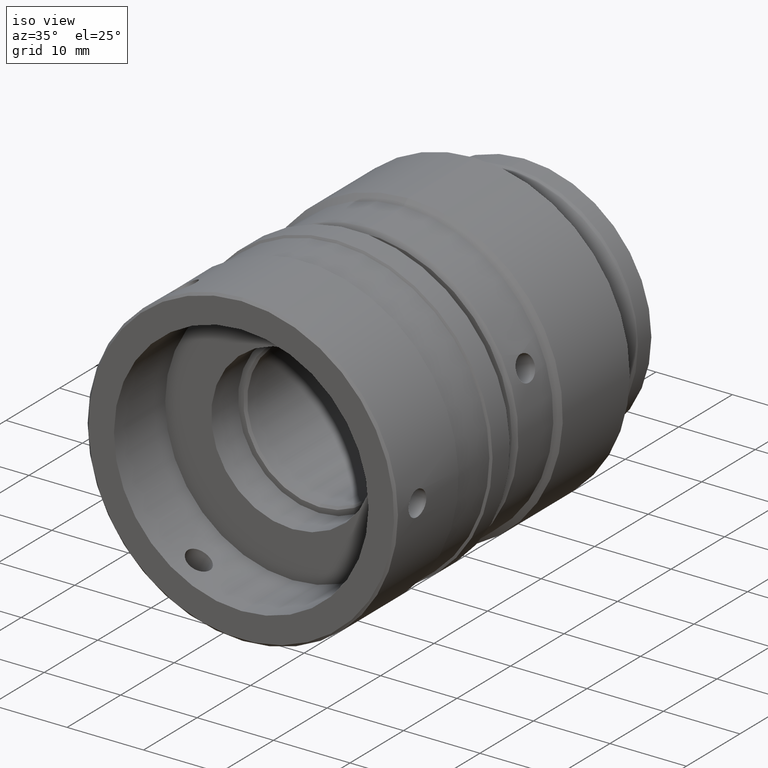
[diagram: clean part render]
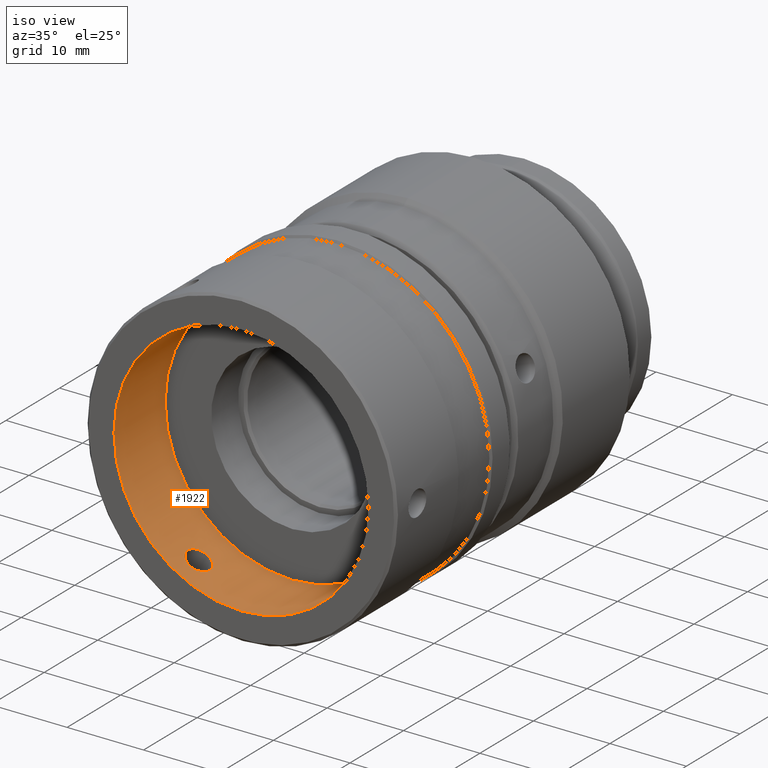
[diagram: same view with one face highlighted and labeled with its STEP entity id]
A machine part, iso view. The second image highlights one B-rep face of the part: STEP entity #1922.
In plain terms, the highlighted cylindrical surface (bore or boss wall) has radius 16.65 mm, axis along (-0, -1, -0).
Its self-contained STEP definition (entity closure, byte-faithful):
#16 = CARTESIAN_POINT ( 'NONE',  ( 30.87056518508689962, -19.67017350157757605, -1.649999999999998579 ) ) ;
#35 = CARTESIAN_POINT ( 'NONE',  ( 7.407886653975933378, -20.10282941738078577, 15.15563960079791883 ) ) ;
#44 = CARTESIAN_POINT ( 'NONE',  ( 7.399261285211218286, -20.09742192102253000, -15.15149869125153970 ) ) ;
#56 = CARTESIAN_POINT ( 'NONE',  ( 6.165025702879183278, -21.32002080350313733, -14.52755985513826786 ) ) ;
#107 = CARTESIAN_POINT ( 'NONE',  ( 4.589560980171367710, -19.67017350157757605, -13.52334485228183425 ) ) ;
#109 = CARTESIAN_POINT ( 'NONE',  ( 30.95146064570561606, -18.03080132146151726, 0.2158723718159236693 ) ) ;
#111 = CARTESIAN_POINT ( 'NONE',  ( 7.370233246583027586, -19.13811687412143669, 15.13828190850778732 ) ) ;
#116 = CARTESIAN_POINT ( 'NONE',  ( 30.90091788864421574, -20.67746507120950383, -1.311261420921022047 ) ) ;
#119 = B_SPLINE_CURVE_WITH_KNOTS ( 'NONE', 3,
 ( #1971, #387, #1084, #1821, #1798, #1307, #209, #1982, #243, #2178, #1763, #419, #220, #737, #1446, #1046, #2155, #918, #1107, #231, #567, #1120, #1274, #1633, #592, #1810, #1285, #173, #873, #44, #749, #1457, #1470, #2166, #580, #1994, #929, #1645, #56, #760, #1296, #2005, #2042, #1319, #1186, #979, #1696, #965, #1505, #296, #953, #1894, #1671, #107 ),
 .UNSPECIFIED., .T., .F.,
 ( 4, 2, 2, 2, 2, 2, 2, 2, 2, 2, 2, 2, 2, 2, 2, 2, 2, 2, 2, 2, 2, 2, 2, 2, 2, 2, 4 ),
 ( 0.000000000000000000, 0.0003225425957372763937, 0.0006450851914745527873, 0.0009676277872118291268, 0.001290170382949105575, 0.001935255574423647412, 0.002580340765898189465, 0.002902883361635461793, 0.003225425957372734121, 0.003547968553110006883, 0.003870511148847278777, 0.004193053744584551538, 0.004515596340321823866, 0.005160681531796367655, 0.005483224127533633911, 0.005805766723270901902, 0.006128309319008169026, 0.006450851914745436150, 0.007095937106219963458, 0.007741022297694488165, 0.008063564893431752686, 0.008386107489169016341, 0.008708650084906279995, 0.009031192680643543649, 0.009353735276380809038, 0.009676277872118070958, 0.01032136306359260867 ),
 .UNSPECIFIED. ) ;
#121 = CARTESIAN_POINT ( 'NONE',  ( 30.88644130139157440, -18.93785698877006496, 1.482534456406314760 ) ) ;
#123 = CARTESIAN_POINT ( 'NONE',  ( 4.598296489456230596, -19.88647668602636998, 13.52963114916807186 ) ) ;
#133 = CARTESIAN_POINT ( 'NONE',  ( 30.92228117155350731, -18.35132570104167371, -1.014598517724230042 ) ) ;
#146 = CARTESIAN_POINT ( 'NONE',  ( 30.95146064961669907, -21.30954572047093265, -0.2158719825168255446 ) ) ;
#148 = CARTESIAN_POINT ( 'NONE',  ( 4.589561232836488536, -19.77924536381511444, 13.52334503375521635 ) ) ;
#157 = CARTESIAN_POINT ( 'NONE',  ( 30.88641961823405779, -18.93834871924507368, -1.482775887056170694 ) ) ;
#159 = CARTESIAN_POINT ( 'NONE',  ( 5.609850582111199913, -18.07287508091668116, 14.20109638130206520 ) ) ;
#173 = CARTESIAN_POINT ( 'NONE',  ( 7.447444529166681093, -19.77924536381510023, -15.17334472420398939 ) ) ;
#198 = CARTESIAN_POINT ( 'NONE',  ( 14.30252365930601144, -23.61017350157762351, -6.938893903907228378E-15 ) ) ;
#209 = CARTESIAN_POINT ( 'NONE',  ( 4.768084820516240718, -18.84361125863317099, -13.64992978743777208 ) ) ;
#220 = CARTESIAN_POINT ( 'NONE',  ( 5.790036414369917672, -18.02032619992391815, -14.31105968844311072 ) ) ;
#231 = CARTESIAN_POINT ( 'NONE',  ( 6.863416483750295782, -18.35756198235752734, -14.89597918450131075 ) ) ;
#243 = CARTESIAN_POINT ( 'NONE',  ( 4.924400781574530761, -18.57947326001093202, -13.75787497289056027 ) ) ;
#270 = ORIENTED_EDGE ( 'NONE', *, *, #1816, .F. ) ;
#296 = CARTESIAN_POINT ( 'NONE',  ( 4.769145562213570777, -20.49891863945954640, -13.65067029725654280 ) ) ;
#298 = CARTESIAN_POINT ( 'NONE',  ( 30.94437348724385473, -18.10401344155607717, 0.5304078244207934834 ) ) ;
#300 = CARTESIAN_POINT ( 'NONE',  ( 5.604166959140171045, -21.27659272925781053, 14.19861056205348504 ) ) ;
#310 = CARTESIAN_POINT ( 'NONE',  ( 30.94437351546437043, -21.23633385761170445, -0.5304069092526541018 ) ) ;
#312 = CARTESIAN_POINT ( 'NONE',  ( 6.350349314462011563, -21.26747210927094400, 14.62862354459146985 ) ) ;
#323 = CARTESIAN_POINT ( 'NONE',  ( 30.87164146698486888, -19.45387451277937529, -1.639292244369253693 ) ) ;
#326 = CARTESIAN_POINT ( 'NONE',  ( 7.399262208679997066, -19.24292881143790268, 15.15149911168826158 ) ) ;
#337 = EDGE_LOOP ( 'NONE', ( #1924 ) ) ;
#338 = CARTESIAN_POINT ( 'NONE',  ( 4.726652337029537243, -18.93785698877006141, 13.62082674411179894 ) ) ;
#370 = VERTEX_POINT ( 'NONE', #16 ) ;
#387 = CARTESIAN_POINT ( 'NONE',  ( 4.589560980171366822, -19.56110607403454793, -13.52334485228183425 ) ) ;
#407 = CARTESIAN_POINT ( 'NONE',  ( 7.294475990182783143, -20.40249298859101756, 15.10336057483338479 ) ) ;
#417 = FACE_BOUND ( 'NONE', #337, .T. ) ;
#419 = CARTESIAN_POINT ( 'NONE',  ( 5.604166302340058969, -18.06375442982372093, -14.19861016385346453 ) ) ;
#441 = DIRECTION ( 'NONE',  ( -0.000000000000000000, -1.000000000000000000, -0.000000000000000000 ) ) ;
#465 = CARTESIAN_POINT ( 'NONE',  ( 30.92237372736938283, -20.98278618002589724, -1.005532263322487463 ) ) ;
#471 = CARTESIAN_POINT ( 'NONE',  ( 30.87880568239256718, -20.20223363571934527, 1.565600143535539779 ) ) ;
#483 = CARTESIAN_POINT ( 'NONE',  ( 30.94805945456930729, -21.27659272925780698, 0.4336925924953600187 ) ) ;
#485 = CARTESIAN_POINT ( 'NONE',  ( 5.052265960909738673, -18.42569638286175859, 13.84417569758520372 ) ) ;
#494 = CARTESIAN_POINT ( 'NONE',  ( 30.95253116408970939, -21.32024923168640740, -0.1064996456120240881 ) ) ;
#496 = CARTESIAN_POINT ( 'NONE',  ( 4.658533151292323815, -20.20223363571933461, 13.57268126052042767 ) ) ;
#506 = CARTESIAN_POINT ( 'NONE',  ( 30.87056518508690672, -19.56110607403454438, -1.649999999999999023 ) ) ;
#529 = VERTEX_POINT ( 'NONE', #845 ) ;
#536 = AXIS2_PLACEMENT_3D ( 'NONE', #802, #441, #1657 ) ;
#557 = CARTESIAN_POINT ( 'NONE',  ( 7.138912246156918329, -20.67746507120950383, 15.03026177509638295 ) ) ;
#567 = CARTESIAN_POINT ( 'NONE',  ( 6.938244659940262515, -18.42569638286175149, -14.93304600715638841 ) ) ;
#580 = CARTESIAN_POINT ( 'NONE',  ( 7.076914362487521259, -20.76087562413395204, -15.00062941225252011 ) ) ;
#592 = CARTESIAN_POINT ( 'NONE',  ( 7.294477339496997281, -18.93785698877006141, -15.10336120051824516 ) ) ;
#616 = CARTESIAN_POINT ( 'NONE',  ( 7.447444812659815838, -19.67017350157757605, 15.17334485228169427 ) ) ;
#621 = CARTESIAN_POINT ( 'NONE',  ( 30.87501106686349672, -20.10282941738079288, -1.606889003910932479 ) ) ;
#636 = CARTESIAN_POINT ( 'NONE',  ( 30.90624071340990042, -18.57961693245117374, 1.242999686085178856 ) ) ;
#640 = CARTESIAN_POINT ( 'NONE',  ( 4.866808860079305354, -20.67603376374906077, 13.71835971999867709 ) ) ;
#650 = CARTESIAN_POINT ( 'NONE',  ( 30.87573761838393338, -20.09742192102253355, 1.597348760670246337 ) ) ;
#653 = CARTESIAN_POINT ( 'NONE',  ( 6.706664580995882474, -18.22840853159068431, 14.81772169252141502 ) ) ;
#662 = CARTESIAN_POINT ( 'NONE',  ( 30.87164152324371358, -19.88647668602635576, 1.639291678600941937 ) ) ;
#673 = CARTESIAN_POINT ( 'NONE',  ( 30.88641974911332611, -20.40200121010397893, 1.482774426814292390 ) ) ;
#675 = CARTESIAN_POINT ( 'NONE',  ( 7.447444812659813174, -19.56110607403454082, 15.17334485228169250 ) ) ;
#698 = EDGE_LOOP ( 'NONE', ( #270 ) ) ;
#699 = CARTESIAN_POINT ( 'NONE',  ( 7.447444812659815838, -19.67017350157757249, 15.17334485228169960 ) ) ;
#714 = CIRCLE ( 'NONE', #1160, 16.64999999999999858 ) ;
#737 = CARTESIAN_POINT ( 'NONE',  ( 6.069751472314235841, -18.02009777133278590, -14.47257939147130479 ) ) ;
#749 = CARTESIAN_POINT ( 'NONE',  ( 7.370232144233224147, -20.20223363571933461, -15.13828140405609624 ) ) ;
#760 = CARTESIAN_POINT ( 'NONE',  ( 5.885288508320247303, -21.32024923168641095, -14.36607964953831207 ) ) ;
#770 = CARTESIAN_POINT ( 'NONE',  ( 6.703695067100464478, -21.10211790308281010, 14.81513805010832385 ) ) ;
#773 = EDGE_CURVE ( 'NONE', #1007, #1007, #1697, .T. ) ;
#779 = FACE_BOUND ( 'NONE', #909, .T. ) ;
#791 = CARTESIAN_POINT ( 'NONE',  ( 30.90624084057570542, -20.76073198813619669, -1.242997984456236660 ) ) ;
#802 = CARTESIAN_POINT ( 'NONE',  ( 14.30252365930601144, -23.31017350157762991, -6.938893903907228378E-15 ) ) ;
#807 = CARTESIAN_POINT ( 'NONE',  ( 30.87880556808561749, -19.13811687412142604, -1.565601350424563387 ) ) ;
#809 = CARTESIAN_POINT ( 'NONE',  ( 5.271650912243766918, -18.23822986220069353, 13.98834689521491903 ) ) ;
#820 = CARTESIAN_POINT ( 'NONE',  ( 30.90625432678511686, -18.57947326001093558, -1.242755165482364310 ) ) ;
#822 = CARTESIAN_POINT ( 'NONE',  ( 5.885288341500677589, -18.02009777133278945, 14.36607955324051922 ) ) ;
#832 = CARTESIAN_POINT ( 'NONE',  ( 30.95250852706814371, -21.32002080350313733, 0.2164999740593901989 ) ) ;
#834 = CARTESIAN_POINT ( 'NONE',  ( 4.769144280243407863, -18.84143102790322288, 13.65066940175083054 ) ) ;
#844 = CARTESIAN_POINT ( 'NONE',  ( 30.93297661039238022, -18.22840853159068786, -0.8306539208775702843 ) ) ;
#845 = CARTESIAN_POINT ( 'NONE',  ( 14.30252365930601144, -14.05017350157723044, -16.65000000000000568 ) ) ;
#847 = CARTESIAN_POINT ( 'NONE',  ( 4.768086093743278298, -20.49673840251479007, 13.64993067704060969 ) ) ;
#849 = EDGE_CURVE ( 'NONE', #1712, #1712, #119, .T. ) ;
#857 = CARTESIAN_POINT ( 'NONE',  ( 30.94737042570227459, -18.07287508091668116, 0.4275275209926364117 ) ) ;
#873 = CARTESIAN_POINT ( 'NONE',  ( 7.437632965218154979, -19.88647668602636642, -15.16892282776915124 ) ) ;
#895 = DIRECTION ( 'NONE',  ( 0.000000000000000000, 0.000000000000000000, -1.000000000000000000 ) ) ;
#908 = CARTESIAN_POINT ( 'NONE',  ( 6.938243215504215300, -20.91465200720845985, 14.93304529458042751 ) ) ;
#909 = EDGE_LOOP ( 'NONE', ( #2203 ) ) ;
#918 = CARTESIAN_POINT ( 'NONE',  ( 6.617795752194862047, -18.18662015343019434, -14.77083122743972332 ) ) ;
#929 = CARTESIAN_POINT ( 'NONE',  ( 6.706663368735995334, -21.11193919932679819, -14.81772106709796688 ) ) ;
#953 = CARTESIAN_POINT ( 'NONE',  ( 4.726653553545616226, -20.40249298859101401, -13.62082759980978075 ) ) ;
#963 = CARTESIAN_POINT ( 'NONE',  ( 30.87056518508690672, -19.88830835666364294, -1.649999999999998579 ) ) ;
#965 = CARTESIAN_POINT ( 'NONE',  ( 4.924197237279340555, -20.76073198813619314, -13.75774188400367670 ) ) ;
#979 = CARTESIAN_POINT ( 'NONE',  ( 5.121782140912319647, -20.98278618002590079, -13.89044623437025194 ) ) ;
#993 = CARTESIAN_POINT ( 'NONE',  ( 30.92237363510622572, -18.35756198235754866, 1.005533796744149555 ) ) ;
#1006 = CARTESIAN_POINT ( 'NONE',  ( 30.93680274388096052, -21.15372744040918462, -0.7302447951016992622 ) ) ;
#1007 = VERTEX_POINT ( 'NONE', #616 ) ;
#1022 = CARTESIAN_POINT ( 'NONE',  ( 5.121780859061584756, -18.35756198235754511, 13.89044538775703863 ) ) ;
#1034 = CARTESIAN_POINT ( 'NONE',  ( 5.352972534886359490, -18.18662015343018723, 14.04058520244936226 ) ) ;
#1046 = CARTESIAN_POINT ( 'NONE',  ( 6.350349970104626429, -18.07287508091667760, -14.62862390229483367 ) ) ;
#1058 = ORIENTED_EDGE ( 'NONE', *, *, #773, .T. ) ;
#1084 = CARTESIAN_POINT ( 'NONE',  ( 4.598296027616123105, -19.45387451277936819, -13.52963081756247909 ) ) ;
#1097 = CARTESIAN_POINT ( 'NONE',  ( 7.077132900063048737, -20.76073198813619314, 15.00073986845977103 ) ) ;
#1107 = CARTESIAN_POINT ( 'NONE',  ( 6.703696264631886947, -18.23822986220069353, -14.81513866490796794 ) ) ;
#1115 = EDGE_CURVE ( 'NONE', #1848, #1848, #1278, .T. ) ;
#1120 = CARTESIAN_POINT ( 'NONE',  ( 7.077134437300052205, -18.57961693245117374, -15.00074060914556284 ) ) ;
#1160 = AXIS2_PLACEMENT_3D ( 'NONE', #1201, #2253, #1921 ) ;
#1173 = FACE_OUTER_BOUND ( 'NONE', #698, .T. ) ;
#1179 = CARTESIAN_POINT ( 'NONE',  ( 5.113978117228787035, -20.98902243796041844, 13.88583381425808660 ) ) ;
#1186 = CARTESIAN_POINT ( 'NONE',  ( 5.271652043441578783, -21.10211790308282076, -13.98834762490776740 ) ) ;
#1188 = CARTESIAN_POINT ( 'NONE',  ( 30.94805943811801541, -18.06375442982372803, -0.4336933604012082610 ) ) ;
#1190 = CARTESIAN_POINT ( 'NONE',  ( 5.790036747970768616, -21.32002080350314799, 14.31105988107875149 ) ) ;
#1201 = CARTESIAN_POINT ( 'NONE',  ( 14.30252365930601144, -14.05017350157723044, -6.938893903907228378E-15 ) ) ;
#1203 = CARTESIAN_POINT ( 'NONE',  ( 4.924402163948594868, -20.76087562413395915, 13.75787591499211082 ) ) ;
#1213 = CARTESIAN_POINT ( 'NONE',  ( 30.95253116410318839, -18.02009777133279655, 0.1064998382306478614 ) ) ;
#1216 = CARTESIAN_POINT ( 'NONE',  ( 7.447444812659815838, -19.67017350157757249, 15.17334485228169960 ) ) ;
#1226 = CARTESIAN_POINT ( 'NONE',  ( 6.871312994173408129, -18.35132570104167016, 14.90043146920566741 ) ) ;
#1272 = DIRECTION ( 'NONE',  ( 0.000000000000000000, 1.000000000000000000, 0.000000000000000000 ) ) ;
#1274 = CARTESIAN_POINT ( 'NONE',  ( 7.138913740506144023, -18.66288405901757486, -15.03026248713923607 ) ) ;
#1278 = CIRCLE ( 'NONE', #1352, 16.64999999999999858 ) ;
#1285 = CARTESIAN_POINT ( 'NONE',  ( 7.447445379628416795, -19.45204382574903335, -15.17334510842925255 ) ) ;
#1296 = CARTESIAN_POINT ( 'NONE',  ( 5.791104543325918286, -21.30954572047092910, -14.31046638835716145 ) ) ;
#1305 = FACE_BOUND ( 'NONE', #1482, .T. ) ;
#1307 = CARTESIAN_POINT ( 'NONE',  ( 4.726454093532460377, -18.93834871924507368, -13.62068725062179020 ) ) ;
#1316 = CARTESIAN_POINT ( 'NONE',  ( 30.89103996396205432, -20.49891863945954640, -1.430812467336088467 ) ) ;
#1319 = CARTESIAN_POINT ( 'NONE',  ( 5.352973573479233416, -21.15372744040919173, -14.04058586333130698 ) ) ;
#1345 = CARTESIAN_POINT ( 'NONE',  ( 30.89103982941647430, -18.84143102790323709, 1.430814025307418635 ) ) ;
#1346 = CARTESIAN_POINT ( 'NONE',  ( 14.30252365930601144, -23.61017350157762351, -16.65000000000000568 ) ) ;
#1347 = CARTESIAN_POINT ( 'NONE',  ( 7.294697266151556114, -18.93834871924507368, 15.10346313767782789 ) ) ;
#1352 = AXIS2_PLACEMENT_3D ( 'NONE', #198, #1272, #895 ) ;
#1357 = CARTESIAN_POINT ( 'NONE',  ( 30.92228126622110906, -20.98902243796041844, 1.014596956139992567 ) ) ;
#1359 = CARTESIAN_POINT ( 'NONE',  ( 4.924195827208137644, -18.57961693245117019, 13.75774092306024343 ) ) ;
#1372 = CARTESIAN_POINT ( 'NONE',  ( 4.589560474856791750, -19.45204382574901913, 13.52334448934637479 ) ) ;
#1383 = CARTESIAN_POINT ( 'NONE',  ( 30.90082894283450443, -18.66431539277606078, -1.312390523965326405 ) ) ;
#1386 = CARTESIAN_POINT ( 'NONE',  ( 7.437633483317089400, -19.45387451277936464, 15.16892306193159712 ) ) ;
#1399 = CARTESIAN_POINT ( 'NONE',  ( 7.248557122905934236, -18.84361125863317099, 15.08203113893985403 ) ) ;
#1446 = CARTESIAN_POINT ( 'NONE',  ( 6.165006124074135840, -18.03080132146151726, -14.52633856213643604 ) ) ;
#1457 = CARTESIAN_POINT ( 'NONE',  ( 7.294695936105583201, -20.40200121010396117, -15.10346252090176833 ) ) ;
#1470 = CARTESIAN_POINT ( 'NONE',  ( 7.248555715873743033, -20.49673840251477586, -15.08203048109432665 ) ) ;
#1479 = CARTESIAN_POINT ( 'NONE',  ( 30.91706046217723625, -20.91465200720845274, -1.088868702365001884 ) ) ;
#1481 = CARTESIAN_POINT ( 'NONE',  ( 7.247385451742459850, -20.49891863945954640, 15.08148276459248471 ) ) ;
#1482 = EDGE_LOOP ( 'NONE', ( #1058 ) ) ;
#1505 = CARTESIAN_POINT ( 'NONE',  ( 4.867740843116948213, -20.67746507120951449, -13.71900035417549901 ) ) ;
#1519 = CARTESIAN_POINT ( 'NONE',  ( 30.93680269083687762, -18.18662015343019789, 0.7302460249902265055 ) ) ;
#1520 = CARTESIAN_POINT ( 'NONE',  ( 4.589560980171366822, -19.67017350157757605, -13.52334485228183425 ) ) ;
#1521 = CARTESIAN_POINT ( 'NONE',  ( 5.522252095022576412, -18.10401344155607717, 14.14706080474940286 ) ) ;
#1531 = CARTESIAN_POINT ( 'NONE',  ( 30.89092916830108493, -20.49673840251478651, 1.432099804053588610 ) ) ;
#1545 = CARTESIAN_POINT ( 'NONE',  ( 30.87056518508690672, -19.67017350157757605, -1.649999999999999023 ) ) ;
#1548 = CARTESIAN_POINT ( 'NONE',  ( 6.440944588982350005, -21.23633385761171510, 14.67746819602582065 ) ) ;
#1557 = CARTESIAN_POINT ( 'NONE',  ( 30.87056512343286485, -19.45204382574902979, 1.650000619082738096 ) ) ;
#1560 = CARTESIAN_POINT ( 'NONE',  ( 6.165005784975474690, -21.30954572047093620, 14.52633837087385693 ) ) ;
#1633 = CARTESIAN_POINT ( 'NONE',  ( 7.247386868258222314, -18.84143102790323709, -15.08148342705839262 ) ) ;
#1645 = CARTESIAN_POINT ( 'NONE',  ( 6.355344564208615488, -21.27659272925780698, -14.63230315454898722 ) ) ;
#1657 = DIRECTION ( 'NONE',  ( 0.000000000000000000, 0.000000000000000000, -1.000000000000000000 ) ) ;
#1671 = CARTESIAN_POINT ( 'NONE',  ( 4.589560980171369486, -19.88830835666362873, -13.52334485228183603 ) ) ;
#1672 = EDGE_LOOP ( 'NONE', ( #1869 ) ) ;
#1696 = CARTESIAN_POINT ( 'NONE',  ( 5.052267300236636949, -20.91465200720844564, -13.84417659221555930 ) ) ;
#1697 = B_SPLINE_CURVE_WITH_KNOTS ( 'NONE', 3,
 ( #1216, #675, #1386, #326, #111, #1347, #1399, #1739, #2244, #1226, #653, #1713, #1935, #822, #1925, #159, #1521, #1034, #809, #1022, #485, #1359, #2230, #834, #338, #2085, #1372, #148, #123, #2073, #496, #1726, #847, #640, #1203, #1179, #1886, #300, #1190, #1897, #1560, #312, #1548, #2268, #770, #1832, #908, #1097, #557, #1481, #407, #35, #2292, #699 ),
 .UNSPECIFIED., .T., .F.,
 ( 4, 2, 2, 2, 2, 2, 2, 2, 2, 2, 2, 2, 2, 2, 2, 2, 2, 2, 2, 2, 2, 2, 2, 2, 2, 2, 4 ),
 ( 0.000000000000000000, 0.0003225425957372717858, 0.0006450851914745435716, 0.0009676277872118153574, 0.001290170382949087143, 0.001935255574423638087, 0.002580340765898189032, 0.002902883361635463528, 0.003225425957372737157, 0.003547968553110011653, 0.003870511148847285282, 0.004193053744584560212, 0.004515596340321833407, 0.005160681531796383267, 0.005483224127533652993, 0.005805766723270922719, 0.006128309319008190710, 0.006450851914745461303, 0.007095937106219992081, 0.007741022297694522859, 0.008063564893431787381, 0.008386107489169052770, 0.008708650084906318159, 0.009031192680643581813, 0.009353735276380847202, 0.009676277872118112591, 0.01032136306359263296 ),
 .UNSPECIFIED. ) ;
#1711 = CARTESIAN_POINT ( 'NONE',  ( 30.90091775811681885, -18.66288405901756420, 1.311263071086592902 ) ) ;
#1712 = VERTEX_POINT ( 'NONE', #1520 ) ;
#1713 = CARTESIAN_POINT ( 'NONE',  ( 6.355345237460026553, -18.06375442982372803, 14.63230352425453873 ) ) ;
#1726 = CARTESIAN_POINT ( 'NONE',  ( 4.726455292699195176, -20.40200121010397183, 13.62068809408733649 ) ) ;
#1737 = CARTESIAN_POINT ( 'NONE',  ( 30.87573752075840616, -19.24292881143790979, -1.597349770636277588 ) ) ;
#1739 = CARTESIAN_POINT ( 'NONE',  ( 7.139934550981637429, -18.66431539277605722, 15.03074929728775899 ) ) ;
#1763 = CARTESIAN_POINT ( 'NONE',  ( 5.267929786529832015, -18.22840853159068075, -13.98706777164397863 ) ) ;
#1798 = CARTESIAN_POINT ( 'NONE',  ( 4.658532163249436309, -19.13811687412143669, -13.57268055808336804 ) ) ;
#1810 = CARTESIAN_POINT ( 'NONE',  ( 7.407887607374943784, -19.23752128709564957, -15.15564003290677064 ) ) ;
#1816 = EDGE_CURVE ( 'NONE', #529, #529, #714, .T. ) ;
#1821 = CARTESIAN_POINT ( 'NONE',  ( 4.632571248479670167, -19.24292881143789913, -13.55414934105212410 ) ) ;
#1832 = CARTESIAN_POINT ( 'NONE',  ( 6.863415109636392231, -20.98278618002590079, 14.89597849769260129 ) ) ;
#1848 = VERTEX_POINT ( 'NONE', #1346 ) ;
#1854 = FACE_OUTER_BOUND ( 'NONE', #1672, .T. ) ;
#1869 = ORIENTED_EDGE ( 'NONE', *, *, #1115, .F. ) ;
#1880 = CYLINDRICAL_SURFACE ( 'NONE', #536, 16.64999999999999858 ) ;
#1884 = CARTESIAN_POINT ( 'NONE',  ( 30.89092903449591532, -18.84361125863318875, -1.432101351502216957 ) ) ;
#1886 = CARTESIAN_POINT ( 'NONE',  ( 5.267930934292381018, -21.11193919932679108, 13.98706850878008545 ) ) ;
#1890 = EDGE_CURVE ( 'NONE', #370, #370, #2243, .T. ) ;
#1894 = CARTESIAN_POINT ( 'NONE',  ( 4.624673257078653066, -20.10282941738079643, -13.54875059688712291 ) ) ;
#1896 = CARTESIAN_POINT ( 'NONE',  ( 30.94737044374338808, -21.26747210927094045, -0.4275267743380467000 ) ) ;
#1897 = CARTESIAN_POINT ( 'NONE',  ( 6.069751305508140682, -21.32024923168641095, 14.47257929515019903 ) ) ;
#1908 = CARTESIAN_POINT ( 'NONE',  ( 30.90082907469141915, -20.67603376374905366, 1.312388858995678254 ) ) ;
#1921 = DIRECTION ( 'NONE',  ( 0.000000000000000000, 0.000000000000000000, -1.000000000000000000 ) ) ;
#1922 = ADVANCED_FACE ( 'NONE', ( #1173, #417, #1854, #1305, #779 ), #1880, .F. ) ;
#1924 = ORIENTED_EDGE ( 'NONE', *, *, #1890, .T. ) ;
#1925 = CARTESIAN_POINT ( 'NONE',  ( 5.791104208138344589, -18.03080132146151726, 14.31046619032037803 ) ) ;
#1935 = CARTESIAN_POINT ( 'NONE',  ( 6.165026036506977114, -18.02032619992391460, 14.52756004772724374 ) ) ;
#1971 = CARTESIAN_POINT ( 'NONE',  ( 4.589560980171367710, -19.67017350157757605, -13.52334485228183425 ) ) ;
#1982 = CARTESIAN_POINT ( 'NONE',  ( 4.866807484101949299, -18.66431539277606788, -13.71835877332256715 ) ) ;
#1994 = CARTESIAN_POINT ( 'NONE',  ( 6.871311594468200390, -20.98902243796041844, -14.90043077039820929 ) ) ;
#2005 = CARTESIAN_POINT ( 'NONE',  ( 5.609851219712687964, -21.26747210927094756, -14.20109677025355310 ) ) ;
#2015 = CARTESIAN_POINT ( 'NONE',  ( 30.93222386737605589, -21.10211790308279234, -0.8267904252007031163 ) ) ;
#2042 = CARTESIAN_POINT ( 'NONE',  ( 5.522252873471378720, -21.23633385761171155, -14.14706128677330099 ) ) ;
#2053 = CARTESIAN_POINT ( 'NONE',  ( 30.87056518508690672, -19.67017350157757605, -1.649999999999999023 ) ) ;
#2057 = CARTESIAN_POINT ( 'NONE',  ( 30.87056521591492952, -19.77924536381511089, 1.649999690448648249 ) ) ;
#2071 = CARTESIAN_POINT ( 'NONE',  ( 30.87501096438125003, -19.23752128709564957, 1.606890045632877628 ) ) ;
#2073 = CARTESIAN_POINT ( 'NONE',  ( 4.632572074322953704, -20.09742192102252645, 13.55414993058116302 ) ) ;
#2084 = CARTESIAN_POINT ( 'NONE',  ( 30.95250852704119282, -18.02032619992391460, -0.2165003592842691393 ) ) ;
#2085 = CARTESIAN_POINT ( 'NONE',  ( 4.624672406161912441, -19.23752128709565312, 13.54874998727375868 ) ) ;
#2095 = CARTESIAN_POINT ( 'NONE',  ( 30.93297667488972635, -21.11193919932678753, 0.8306525583177426508 ) ) ;
#2155 = CARTESIAN_POINT ( 'NONE',  ( 6.440945395651674232, -18.10401344155607006, -14.67746862917033113 ) ) ;
#2166 = CARTESIAN_POINT ( 'NONE',  ( 7.139933043147385305, -20.67603376374907143, -15.03074857899448880 ) ) ;
#2178 = CARTESIAN_POINT ( 'NONE',  ( 5.113976812191170396, -18.35132570104167371, -13.88583295148157504 ) ) ;
#2203 = ORIENTED_EDGE ( 'NONE', *, *, #849, .T. ) ;
#2211 = CARTESIAN_POINT ( 'NONE',  ( 30.88644143418968113, -20.40249298859100691, -1.482532975023744148 ) ) ;
#2228 = CARTESIAN_POINT ( 'NONE',  ( 30.91706035706810596, -18.42569638286176215, 1.088870309571052131 ) ) ;
#2230 = CARTESIAN_POINT ( 'NONE',  ( 4.867739479295145166, -18.66288405901757486, 13.71899941605252060 ) ) ;
#2241 = CARTESIAN_POINT ( 'NONE',  ( 30.90625445148198125, -20.76087562413395915, 1.242753497260278728 ) ) ;
#2243 = B_SPLINE_CURVE_WITH_KNOTS ( 'NONE', 3,
 ( #1545, #506, #323, #1737, #807, #157, #1884, #1383, #820, #133, #844, #1188, #2084, #1213, #109, #857, #298, #1519, #2266, #993, #2228, #636, #1711, #1345, #121, #2071, #1557, #2057, #662, #650, #471, #673, #1531, #1908, #2241, #1357, #2095, #483, #832, #494, #146, #1896, #310, #1006, #2015, #465, #1479, #791, #116, #1316, #2211, #621, #963, #2053 ),
 .UNSPECIFIED., .T., .F.,
 ( 4, 2, 2, 2, 2, 2, 2, 2, 2, 2, 2, 2, 2, 2, 2, 2, 2, 2, 2, 2, 2, 2, 2, 2, 2, 2, 4 ),
 ( 0.000000000000000000, 0.0003225425957372684790, 0.0006450851914745369580, 0.0009676277872118054912, 0.001290170382949073916, 0.001935255574423618355, 0.002580340765898163011, 0.002902883361635434905, 0.003225425957372706799, 0.003547968553109979127, 0.003870511148847251021, 0.004193053744584523783, 0.004515596340321796111, 0.005160681531796340767, 0.005483224127533607890, 0.005805766723270875881, 0.006128309319008143005, 0.006450851914745410129, 0.007095937106219937437, 0.007741022297694463011, 0.008063564893431726666, 0.008386107489168992055, 0.008708650084906255709, 0.009031192680643519363, 0.009353735276380783017, 0.009676277872118046672, 0.01032136306359258265 ),
 .UNSPECIFIED. ) ;
#2244 = CARTESIAN_POINT ( 'NONE',  ( 7.076915869558451533, -18.57947326001092492, 15.00063013837278625 ) ) ;
#2253 = DIRECTION ( 'NONE',  ( -0.000000000000000000, -1.000000000000000000, -0.000000000000000000 ) ) ;
#2266 = CARTESIAN_POINT ( 'NONE',  ( 30.93222380104244706, -18.23822986220070064, 0.8267917696929127924 ) ) ;
#2268 = CARTESIAN_POINT ( 'NONE',  ( 6.617794660557895448, -21.15372744040917752, 14.77083065843286391 ) ) ;
#2292 = CARTESIAN_POINT ( 'NONE',  ( 7.447444812659819391, -19.88830835666363583, 15.17334485228171381 ) ) ;